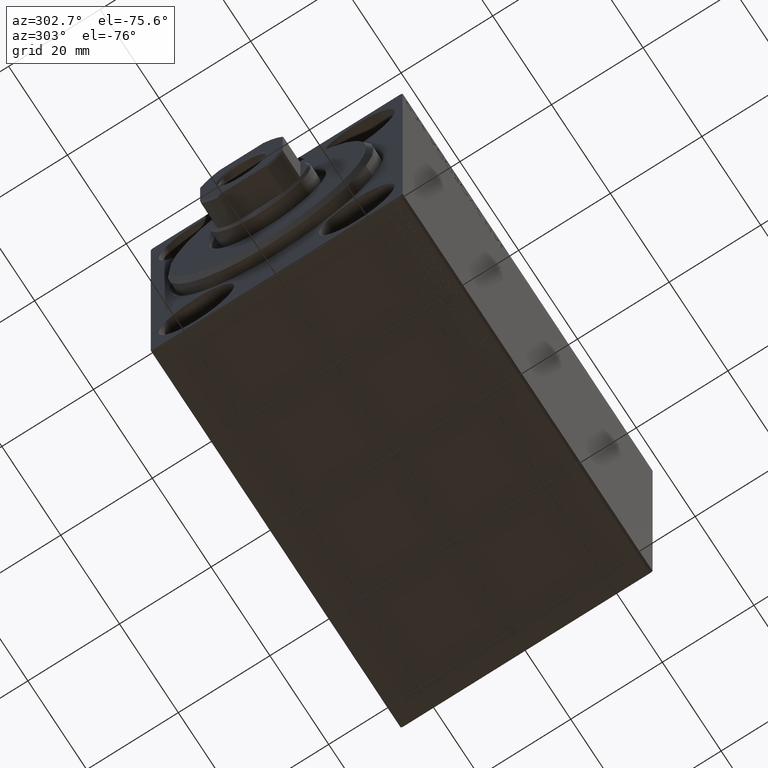
[diagram: clean part render]
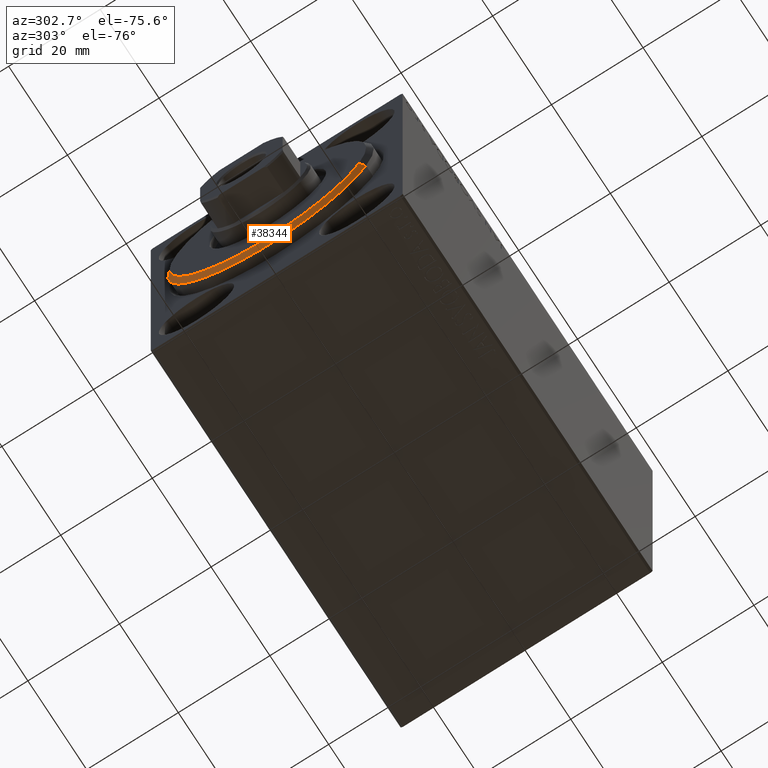
[diagram: same view with one face highlighted and labeled with its STEP entity id]
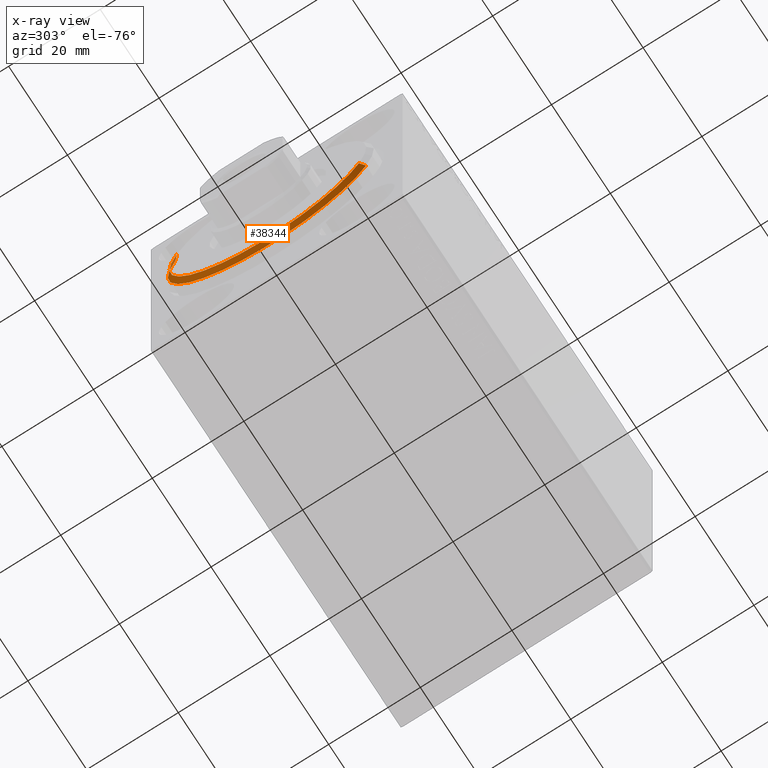
[diagram: x-ray of the same camera — body ghosted, the highlighted face saturated]
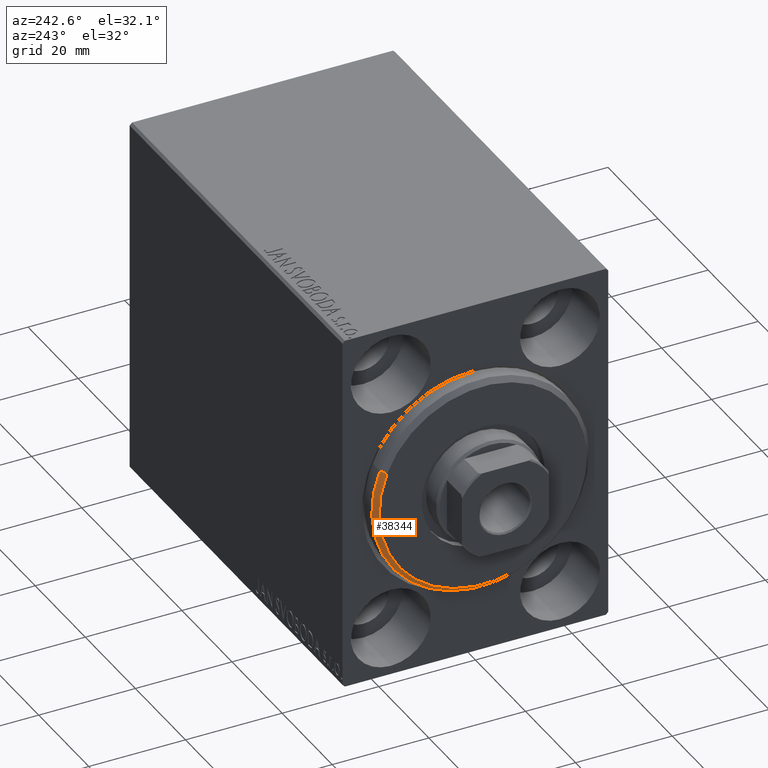
[diagram: same view with one face highlighted and labeled with its STEP entity id]
A machine part, auxiliary view. The second image highlights one B-rep face of the part: STEP entity #38344.
The next image is the same camera in x-ray: the body ghosted, the highlighted face saturated — about 0% of this face is hidden behind the body in this view.
A second angle (auxiliary view) of the same face is appended — the face is thin or edge-on in the first view.
In plain terms, the highlighted conical surface has half-angle 45 deg.
Its self-contained STEP definition (entity closure, byte-faithful):
#234 = DIRECTION ( 'NONE',  ( 0.000000000000000000, 0.000000000000000000, -1.000000000000000000 ) ) ;
#1290 = VECTOR ( 'NONE', #42390, 1000.000000000000000 ) ;
#3055 = AXIS2_PLACEMENT_3D ( 'NONE', #42334, #9487, #19829 ) ;
#3392 = VERTEX_POINT ( 'NONE', #39393 ) ;
#3488 = CARTESIAN_POINT ( 'NONE',  ( 3.000000000000000000, 0.000000000000000000, 0.000000000000000000 ) ) ;
#4442 = EDGE_CURVE ( 'NONE', #16534, #28224, #14678, .T. ) ;
#5968 = CIRCLE ( 'NONE', #11607, 22.50000000000000355 ) ;
#6137 = CARTESIAN_POINT ( 'NONE',  ( 3.000000000000000000, 0.000000000000000000, 21.50000000000000355 ) ) ;
#7172 = ORIENTED_EDGE ( 'NONE', *, *, #4442, .F. ) ;
#7633 = ORIENTED_EDGE ( 'NONE', *, *, #18199, .T. ) ;
#8681 = CONICAL_SURFACE ( 'NONE', #3055, 21.50000000000000355, 0.7853981633974466137 ) ;
#9487 = DIRECTION ( 'NONE',  ( -1.000000000000000000, 0.000000000000000000, 0.000000000000000000 ) ) ;
#9828 = EDGE_CURVE ( 'NONE', #10261, #3392, #5968, .T. ) ;
#10261 = VERTEX_POINT ( 'NONE', #19091 ) ;
#11607 = AXIS2_PLACEMENT_3D ( 'NONE', #37464, #30408, #234 ) ;
#14484 = CARTESIAN_POINT ( 'NONE',  ( 3.000000000000000000, 2.632990618166810024E-15, -21.50000000000000355 ) ) ;
#14678 = CIRCLE ( 'NONE', #39302, 21.50000000000000355 ) ;
#16534 = VERTEX_POINT ( 'NONE', #19854 ) ;
#16689 = CARTESIAN_POINT ( 'NONE',  ( 3.000000000000000000, 0.000000000000000000, 21.50000000000000355 ) ) ;
#18199 = EDGE_CURVE ( 'NONE', #16534, #3392, #31450, .T. ) ;
#19091 = CARTESIAN_POINT ( 'NONE',  ( 1.999999999999999112, 0.000000000000000000, 22.50000000000000355 ) ) ;
#19829 = DIRECTION ( 'NONE',  ( 0.000000000000000000, 0.000000000000000000, 1.000000000000000000 ) ) ;
#19854 = CARTESIAN_POINT ( 'NONE',  ( 3.000000000000000000, 2.694222958124177598E-15, -21.50000000000000355 ) ) ;
#21936 = DIRECTION ( 'NONE',  ( 0.000000000000000000, 0.000000000000000000, -1.000000000000000000 ) ) ;
#24174 = VECTOR ( 'NONE', #30125, 1000.000000000000000 ) ;
#28224 = VERTEX_POINT ( 'NONE', #6137 ) ;
#28889 = FACE_OUTER_BOUND ( 'NONE', #37838, .T. ) ;
#29483 = LINE ( 'NONE', #16689, #24174 ) ;
#30125 = DIRECTION ( 'NONE',  ( -0.7071067811865487940, 0.000000000000000000, 0.7071067811865463515 ) ) ;
#30408 = DIRECTION ( 'NONE',  ( -1.000000000000000000, 0.000000000000000000, 0.000000000000000000 ) ) ;
#31442 = DIRECTION ( 'NONE',  ( 1.000000000000000000, -0.000000000000000000, 0.000000000000000000 ) ) ;
#31450 = LINE ( 'NONE', #14484, #1290 ) ;
#35423 = ORIENTED_EDGE ( 'NONE', *, *, #38691, .F. ) ;
#36653 = ORIENTED_EDGE ( 'NONE', *, *, #9828, .F. ) ;
#37464 = CARTESIAN_POINT ( 'NONE',  ( 1.999999999999999112, 0.000000000000000000, 0.000000000000000000 ) ) ;
#37838 = EDGE_LOOP ( 'NONE', ( #7172, #7633, #36653, #35423 ) ) ;
#38344 = ADVANCED_FACE ( 'NONE', ( #28889 ), #8681, .T. ) ;
#38691 = EDGE_CURVE ( 'NONE', #28224, #10261, #29483, .T. ) ;
#39302 = AXIS2_PLACEMENT_3D ( 'NONE', #3488, #31442, #21936 ) ;
#39393 = CARTESIAN_POINT ( 'NONE',  ( 1.999999999999999112, 2.755455298081545172E-15, -22.50000000000000355 ) ) ;
#42334 = CARTESIAN_POINT ( 'NONE',  ( 3.000000000000000000, 0.000000000000000000, 0.000000000000000000 ) ) ;
#42390 = DIRECTION ( 'NONE',  ( -0.7071067811865487940, 8.659560562354919300E-17, -0.7071067811865463515 ) ) ;